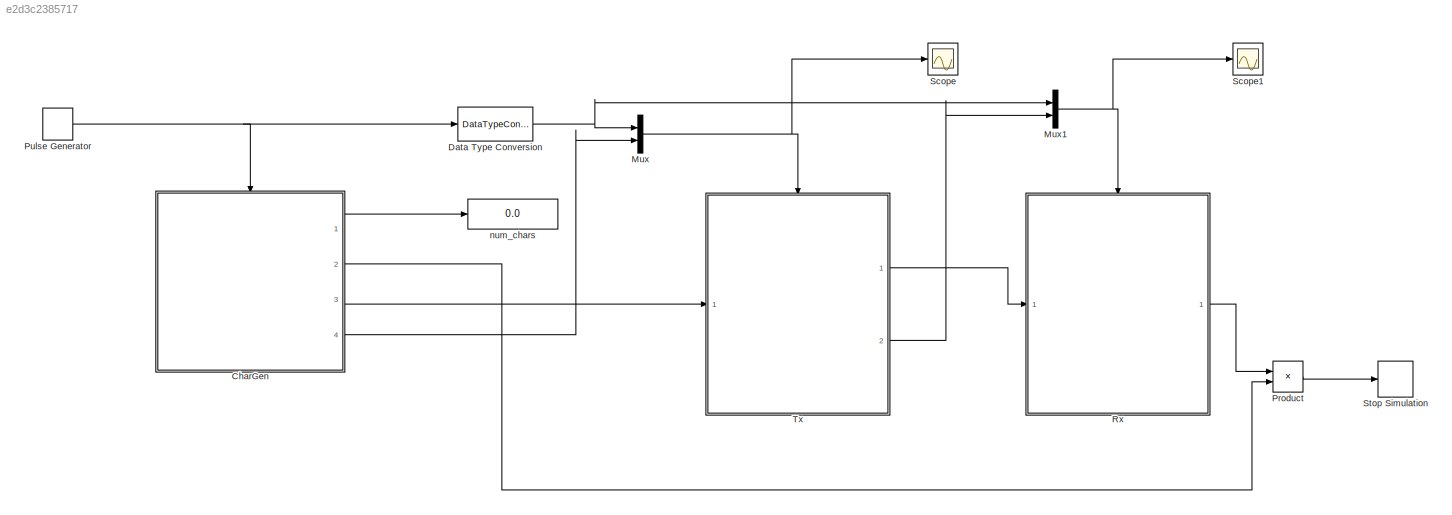
MODEL slx_e2d3c2385717
KIND model
CONFIG AbsTol = auto
CONFIG FixedStep = auto
CONFIG InitFcn = Init_XON_XOFF;
CONFIG MaxStep = auto
CONFIG MinStep = auto
CONFIG RelTol = 1e-3
CONFIG SampleTimeConstraint = Unconstrained
CONFIG Solver = ode45
CONFIG SolverMode = Auto
CONFIG SolverName = ode45
CONFIG StartTime = 0.0
CONFIG StopFcn = Stop_XON_XOFF;
CONFIG StopTime = inf
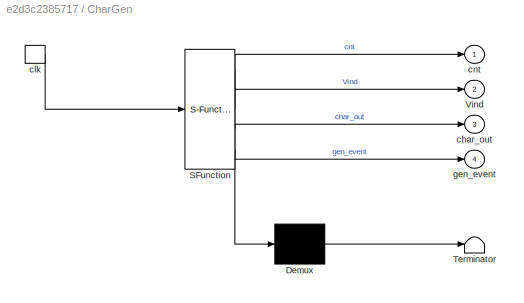
BLOCK [SubSystem] CharGen
  ErrorFcn = Stateflow.Translate.translate
  PermitHierarchicalResolution = ExplicitOnly
  Ports = [0, 4, 0, 1]
  RequestExecContextInheritance = off
  SFBlockType = Chart
  TreatAsAtomicUnit = on
BLOCK [Demux] CharGen/ Demux 
  Outputs = 1
  Ports = [1, 1]
BLOCK [S-Function] CharGen/ SFunction 
  EnableBusSupport = on
  FunctionName = sf_sfun
  PortCounts = [1 5]
  Ports = [1, 5]
  Tag = Stateflow S-Function lab_exer_mat_5 3
BLOCK [Terminator] CharGen/ Terminator 
BLOCK [Outport] CharGen/Vind
  IconDisplay = Port number
  Port = 2
BLOCK [Outport] CharGen/char_out
  IconDisplay = Port number
  Port = 3
BLOCK [TriggerPort] CharGen/clk
  Ports = [0, 1]
  ShowOutputPort = on
  StatesWhenEnabling = held
BLOCK [Outport] CharGen/cnt
  IconDisplay = Port number
BLOCK [Outport] CharGen/gen_event
  IconDisplay = Port number
  Port = 4
BLOCK [DataTypeConversion] Data Type Conversion
  OutDataTypeStr = boolean
  RndMeth = Floor
  SaturateOnIntegerOverflow = off
BLOCK [Mux] Mux
  DisplayOption = bar
  Inputs = 2
  Ports = [2, 1]
BLOCK [Mux] Mux1
  DisplayOption = bar
  Inputs = 2
  Ports = [2, 1]
BLOCK [Product] Product
  InputSameDT = off
  OutDataTypeStr = Inherit: Inherit via internal rule
  Ports = [2, 1]
  RndMeth = Floor
  SaturateOnIntegerOverflow = off
BLOCK [DiscretePulseGenerator] Pulse Generator
  Period = Ts
  Ports = [0, 1]
  PulseType = Time based
  PulseWidth = 50
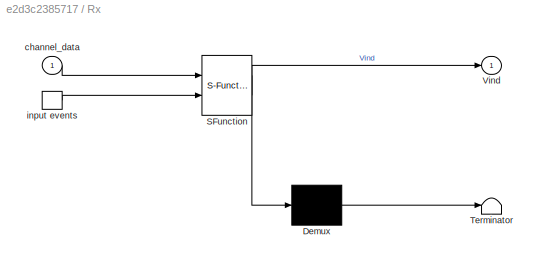
BLOCK [SubSystem] Rx
  ErrorFcn = Stateflow.Translate.translate
  PermitHierarchicalResolution = ExplicitOnly
  Ports = [1, 1, 0, 1]
  RequestExecContextInheritance = off
  SFBlockType = Chart
  TreatAsAtomicUnit = on
BLOCK [Demux] Rx/ Demux 
  Outputs = 1
  Ports = [1, 1]
BLOCK [S-Function] Rx/ SFunction 
  EnableBusSupport = on
  FunctionName = sf_sfun
  PortCounts = [2 2]
  Ports = [2, 2]
  Tag = Stateflow S-Function lab_exer_mat_5 2
BLOCK [Terminator] Rx/ Terminator 
BLOCK [TriggerPort] Rx/ input events 
  Ports = [0, 1]
  ShowOutputPort = on
  StatesWhenEnabling = held
  TriggerType = either
BLOCK [Outport] Rx/Vind
  IconDisplay = Port number
BLOCK [Inport] Rx/channel_data
  IconDisplay = Port number
BLOCK [Scope] Scope
  Floating = off
  NumInputPorts = 1
  Ports = [1]
BLOCK [Scope] Scope1
  Floating = off
  NumInputPorts = 1
  Ports = [1]
  SaveName = ScopeData1
BLOCK [Stop] Stop Simulation
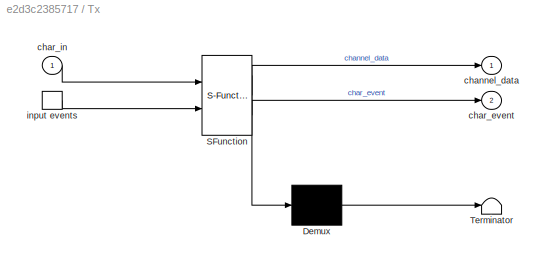
BLOCK [SubSystem] Tx
  ErrorFcn = Stateflow.Translate.translate
  PermitHierarchicalResolution = ExplicitOnly
  Ports = [1, 2, 0, 1]
  RequestExecContextInheritance = off
  SFBlockType = Chart
  TreatAsAtomicUnit = on
BLOCK [Demux] Tx/ Demux 
  Outputs = 1
  Ports = [1, 1]
BLOCK [S-Function] Tx/ SFunction 
  EnableBusSupport = on
  FunctionName = sf_sfun
  PortCounts = [2 3]
  Ports = [2, 3]
  Tag = Stateflow S-Function lab_exer_mat_5 1
BLOCK [Terminator] Tx/ Terminator 
BLOCK [TriggerPort] Tx/ input events 
  Ports = [0, 1]
  ShowOutputPort = on
  StatesWhenEnabling = held
  TriggerType = either
BLOCK [Outport] Tx/channel_data
  IconDisplay = Port number
BLOCK [Outport] Tx/char_event
  IconDisplay = Port number
  Port = 2
BLOCK [Inport] Tx/char_in
  IconDisplay = Port number
BLOCK [Display] num_chars
  Decimation = 1
  Ports = [1]
LINE CharGen:1 -> num_chars:1
LINE CharGen:2 -> Product:2
LINE CharGen:3 -> Tx:1
LINE CharGen:4 -> Mux:2
NET Data Type Conversion:1 -> Mux1:1, Mux:1
NET Mux1:1 -> Rx:trigger, Scope1:1
NET Mux:1 -> Scope:1, Tx:trigger
LINE Product:1 -> Stop Simulation:1
NET Pulse Generator:1 -> CharGen:trigger, Data Type Conversion:1
LINE Rx:1 -> Product:1
LINE Tx:1 -> Rx:1
LINE Tx:2 -> Mux1:2
note: NET lines group one-source signal fan-out (src -> all destinations, sorted); 1:1 wires keep LINE
CHART Tx states=3 transitions=6
  STATE_LABEL 'Init'
  STATE_LABEL 'Del\nentry:i = i + 1;\n channel_data = ml.del;\n char_event;\n ml.char_data[i] = ml.del;\n tmp = ml.bitxor(ml.xor_pat, tmp);'
  STATE_LABEL 'Char_Tx\nentry: i = i + 1;\n channel_data = tmp;\n char_event;\n ml.char_data[i] = tmp;'
CHART Rx states=5 transitions=8
  STATE_LABEL 'Init'
  STATE_LABEL 'End\nentry: Vind = 1;'
  STATE_LABEL 'Del\n//Received DEL char so we need to\n//XOR the next char to receive the actual data'
  STATE_LABEL 'Char_Rx\nentry: j = j + 1;\n ml.recv_data[j] = tmp;'
  STATE_LABEL 'RmDel\nentry:\ntmp = ml.bitxor(ml.xor_pat, tmp);\n'
CHART CharGen states=10 transitions=17
  STATE_LABEL 'C'
  STATE_LABEL 'UpCounter\n\nentry: upc = upc + 1;\nduring: upc = upc + 1;'
  STATE_LABEL '{upc=0;}'
  STATE_LABEL 'UpCounter\n\nentry: upc = upc + 1;\nduring: upc = upc + 1;'
  STATE_LABEL 'D'
  STATE_LABEL 'S0\n\nentry: cnt = cnt + 1;\nml.char_vals[cnt] = ml.randi(ml.Range, 1, 1);\nchar_out = ml.char_vals[cnt];\ngen_event;\nml.time_vals[cnt] = upc;\n\n'
  STATE_LABEL 'S_end\n\nentry: Vind = 1;'
  STATE_LABEL 'S1\n'
  STATE_LABEL 'S4\n'
  STATE_LABEL 'S3\n'
  STATE_LABEL 'S5\n'
  STATE_LABEL 'S2\n'
  STATE_LABEL '{cnt=0;Vind=0;}'
  STATE_LABEL '[cnt==ml.Nc]'
  STATE_LABEL 'clk'
  STATE_LABEL '{val=ml.rand(1);}'
  STATE_LABEL '{val=ml.rand(1);}'
  STATE_LABEL '[val>ml.qs[3]]'
  STATE_LABEL '[val>ml.qs[2]]'
  STATE_LABEL '[val>ml.qs[1]]'
  STATE_LABEL '{val=ml.rand(1);}'
  STATE_LABEL '[val<=ml.qs[2]]'
  STATE_LABEL '[val<=ml.qs[1]]'
  STATE_LABEL '[val<=ml.qs[3]]'
  STATE_LABEL 'S0\n\nentry: cnt = cnt + 1;\nml.char_vals[cnt] = ml.randi(ml.Range, 1, 1);\nchar_out = ml.char_vals[cnt];\ngen_event;\nml.time_vals[cnt] = upc;\n\n'
  STATE_LABEL 'S_end\n\nentry: Vind = 1;'
  STATE_LABEL 'S1\n'
  STATE_LABEL 'S4\n'
  STATE_LABEL 'S3\n'
  STATE_LABEL 'S5\n'
  STATE_LABEL 'S2\n'
